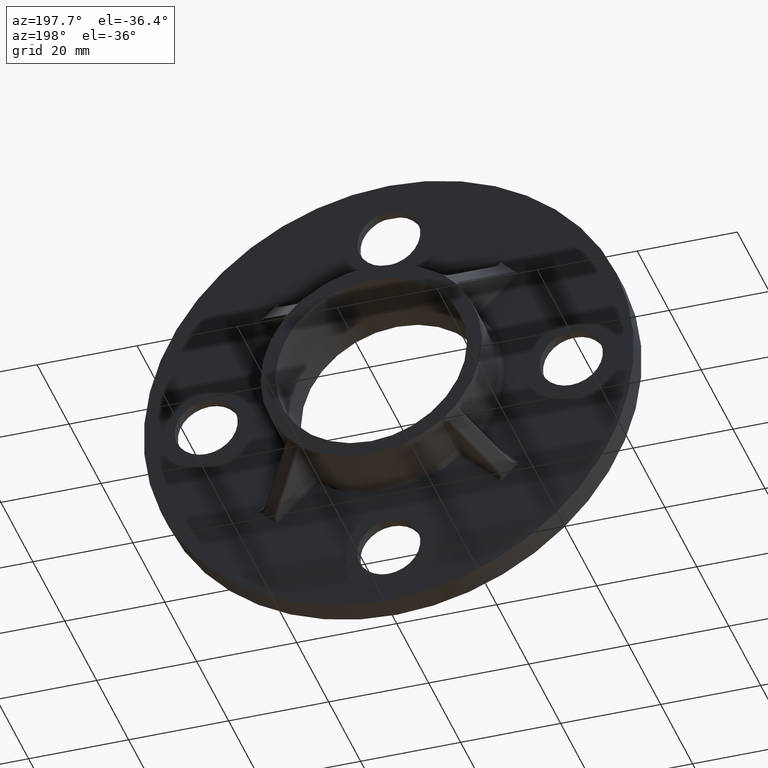
[diagram: clean part render]
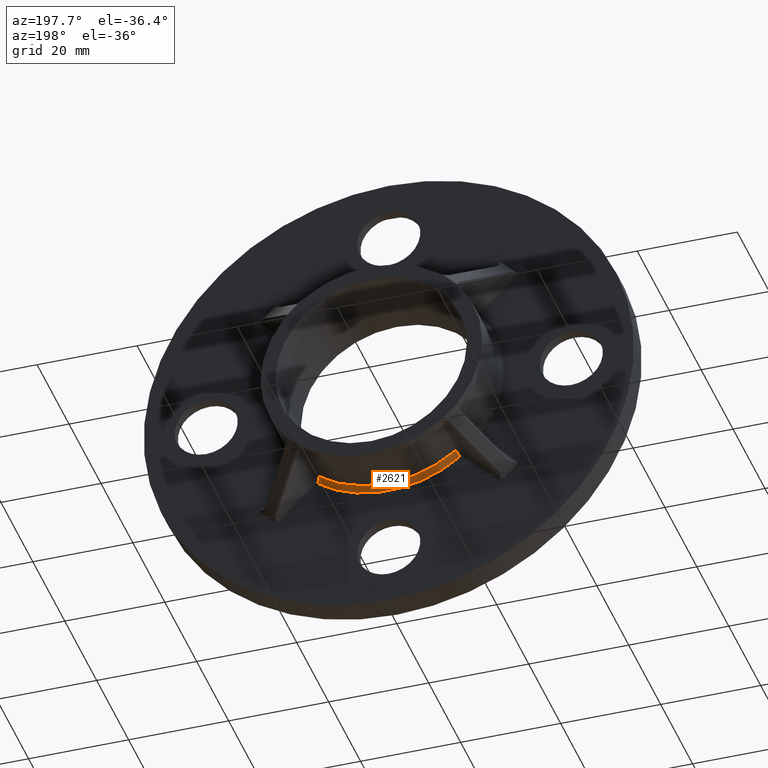
[diagram: same view with one face highlighted and labeled with its STEP entity id]
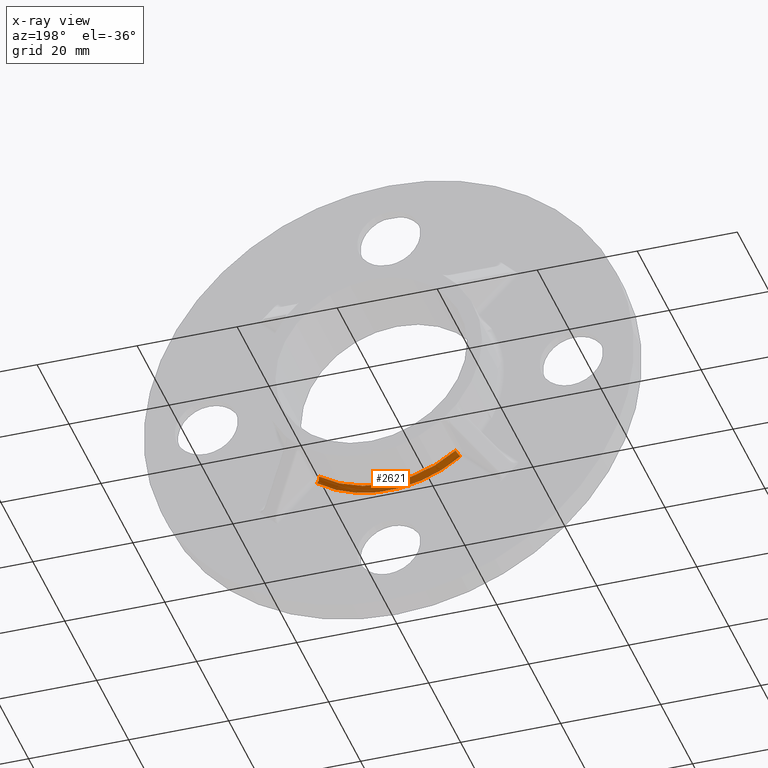
[diagram: x-ray of the same camera — body ghosted, the highlighted face saturated]
A machine part, auxiliary view. The second image highlights one B-rep face of the part: STEP entity #2621.
The next image is the same camera in x-ray: the body ghosted, the highlighted face saturated — about 0% of this face is hidden behind the body in this view.
In plain terms, the highlighted toroidal blend (fillet) surface has major radius 23.15 mm and minor (blend) radius 1 mm.
Its self-contained STEP definition (entity closure, byte-faithful):
#53 = TOROIDAL_SURFACE ( 'NONE', #3524, 23.14999999999999900, 1.000000000000000000 ) ;
#76 = DIRECTION ( 'NONE',  ( -0.0000000000000000000, -1.000000000000000000, -0.0000000000000000000 ) ) ;
#113 = CARTESIAN_POINT ( 'NONE',  ( -14.30907133425718800, 6.000000000000000000, -18.19815863078292000 ) ) ;
#162 = EDGE_CURVE ( 'NONE', #2280, #713, #2485, .T. ) ;
#219 = DIRECTION ( 'NONE',  ( 0.0000000000000000000, 1.000000000000000000, 0.0000000000000000000 ) ) ;
#396 = VERTEX_POINT ( 'NONE', #3438 ) ;
#438 = CARTESIAN_POINT ( 'NONE',  ( 14.30907133425710300, 6.000000000000000000, -18.19815863078299100 ) ) ;
#488 = CARTESIAN_POINT ( 'NONE',  ( -13.69096890081195500, 6.000000000000000000, -17.41206106573830300 ) ) ;
#625 = CIRCLE ( 'NONE', #1313, 22.14999999999999500 ) ;
#713 = VERTEX_POINT ( 'NONE', #1862 ) ;
#725 = CIRCLE ( 'NONE', #2893, 22.14999999999999500 ) ;
#754 = CARTESIAN_POINT ( 'NONE',  ( 0.0000000000000000000, 6.000000000000000000, 0.0000000000000000000 ) ) ;
#860 = EDGE_CURVE ( 'NONE', #396, #2427, #725, .T. ) ;
#897 = CARTESIAN_POINT ( 'NONE',  ( 0.0000000000000000000, 6.000000000000000000, 0.0000000000000000000 ) ) ;
#1058 = CARTESIAN_POINT ( 'NONE',  ( 13.69096890081187100, 6.000000000000000000, -17.41206106573837100 ) ) ;
#1160 = CARTESIAN_POINT ( 'NONE',  ( 0.0000000000000000000, 6.000000000000000000, 0.0000000000000000000 ) ) ;
#1208 = DIRECTION ( 'NONE',  ( 1.776356839400250500E-015, 0.0000000000000000000, 1.000000000000000000 ) ) ;
#1220 = EDGE_CURVE ( 'NONE', #2427, #2245, #1223, .T. ) ;
#1223 = CIRCLE ( 'NONE', #1834, 0.9999999999999996700 ) ;
#1313 = AXIS2_PLACEMENT_3D ( 'NONE', #754, #219, #2101 ) ;
#1460 = DIRECTION ( 'NONE',  ( -0.6181024334452354100, 0.0000000000000000000, -0.7860975650446184700 ) ) ;
#1509 = ORIENTED_EDGE ( 'NONE', *, *, #2145, .F. ) ;
#1737 = CIRCLE ( 'NONE', #2626, 23.14999999999999900 ) ;
#1834 = AXIS2_PLACEMENT_3D ( 'NONE', #113, #3101, #1460 ) ;
#1839 = DIRECTION ( 'NONE',  ( -0.6181024334452316400, 0.0000000000000000000, 0.7860975650446216900 ) ) ;
#1855 = EDGE_LOOP ( 'NONE', ( #3392, #3134, #3487, #3222, #1509 ) ) ;
#1862 = CARTESIAN_POINT ( 'NONE',  ( 14.30907133425710100, 5.000000000000000000, -18.19815863078299100 ) ) ;
#1870 = EDGE_CURVE ( 'NONE', #2245, #713, #1737, .T. ) ;
#1971 = DIRECTION ( 'NONE',  ( 0.0000000000000000000, 0.0000000000000000000, 1.000000000000000000 ) ) ;
#1980 = CARTESIAN_POINT ( 'NONE',  ( 0.0000000000000000000, 5.000000000000000000, 0.0000000000000000000 ) ) ;
#2101 = DIRECTION ( 'NONE',  ( 0.0000000000000000000, 0.0000000000000000000, 1.000000000000000000 ) ) ;
#2145 = EDGE_CURVE ( 'NONE', #2280, #396, #625, .T. ) ;
#2158 = CARTESIAN_POINT ( 'NONE',  ( -14.30907133425719000, 5.000000000000000000, -18.19815863078292400 ) ) ;
#2245 = VERTEX_POINT ( 'NONE', #2158 ) ;
#2280 = VERTEX_POINT ( 'NONE', #1058 ) ;
#2427 = VERTEX_POINT ( 'NONE', #488 ) ;
#2485 = CIRCLE ( 'NONE', #2916, 1.000000000000000000 ) ;
#2621 = ADVANCED_FACE ( 'NONE', ( #2994 ), #53, .F. ) ;
#2626 = AXIS2_PLACEMENT_3D ( 'NONE', #1980, #76, #1208 ) ;
#2685 = DIRECTION ( 'NONE',  ( 0.0000000000000000000, 1.000000000000000000, 0.0000000000000000000 ) ) ;
#2893 = AXIS2_PLACEMENT_3D ( 'NONE', #897, #3051, #1971 ) ;
#2916 = AXIS2_PLACEMENT_3D ( 'NONE', #438, #3486, #1839 ) ;
#2972 = DIRECTION ( 'NONE',  ( 0.0000000000000000000, 0.0000000000000000000, 1.000000000000000000 ) ) ;
#2994 = FACE_OUTER_BOUND ( 'NONE', #1855, .T. ) ;
#3051 = DIRECTION ( 'NONE',  ( 0.0000000000000000000, 1.000000000000000000, 0.0000000000000000000 ) ) ;
#3101 = DIRECTION ( 'NONE',  ( 0.7860975650446185800, 7.808117032205788300E-016, -0.6181024334452354100 ) ) ;
#3134 = ORIENTED_EDGE ( 'NONE', *, *, #1870, .F. ) ;
#3222 = ORIENTED_EDGE ( 'NONE', *, *, #860, .F. ) ;
#3392 = ORIENTED_EDGE ( 'NONE', *, *, #162, .T. ) ;
#3438 = CARTESIAN_POINT ( 'NONE',  ( 0.0000000000000000000, 6.000000000000000000, -22.14999999999999500 ) ) ;
#3486 = DIRECTION ( 'NONE',  ( 0.7860975650446216900, 0.0000000000000000000, 0.6181024334452315200 ) ) ;
#3487 = ORIENTED_EDGE ( 'NONE', *, *, #1220, .F. ) ;
#3524 = AXIS2_PLACEMENT_3D ( 'NONE', #1160, #2685, #2972 ) ;